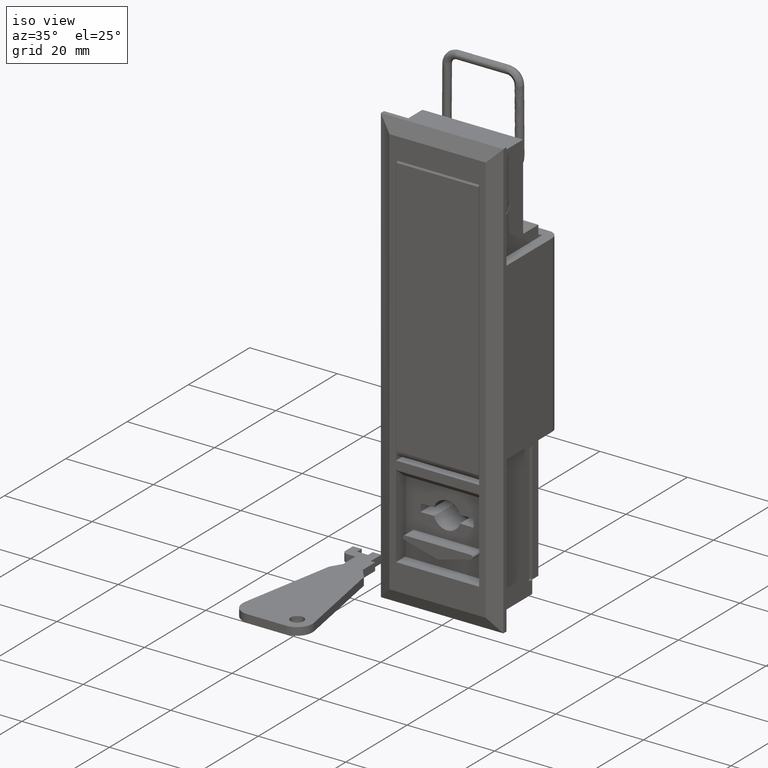
[diagram: clean part render]
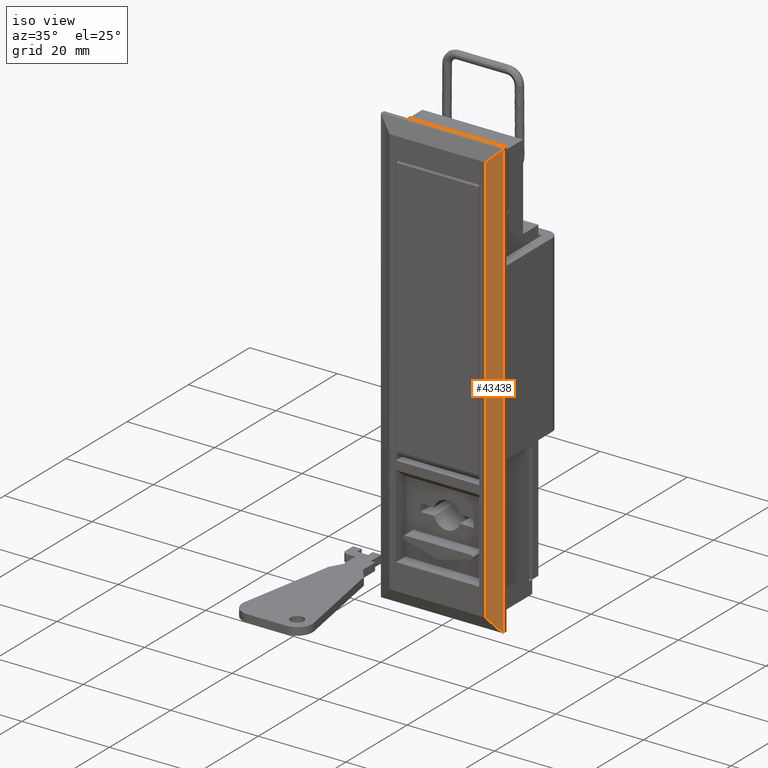
[diagram: same view with one face highlighted and labeled with its STEP entity id]
A machine part, iso view. The second image highlights one B-rep face of the part: STEP entity #43438.
In plain terms, the highlighted face is a freeform B-spline surface patch.
Its self-contained STEP definition (entity closure, byte-faithful):
#43403=CARTESIAN_POINT('',(0.074924997092705,-14.149849994185420,-4.994999806180597));
#43404=CARTESIAN_POINT('',(-1.574925037325756,-10.850149925348310,-4.994999806180597));
#43405=CARTESIAN_POINT('',(0.074924997092705,-14.149849994185420,104.995002488389600));
#43406=CARTESIAN_POINT('',(-1.574925037325756,-10.850149925348310,104.995002488389600));
#43407=B_SPLINE_SURFACE_WITH_KNOTS('',1,1,((#43403,#43405),(#43404,#43406)),.UNSPECIFIED.,.F.,.F.,.U.,(2,2),(2,2),(0.0,3.689176829640213),(0.0,109.990002294570200),.UNSPECIFIED.);
#43408=CARTESIAN_POINT('',(-1.499999999999912,-11.0,3.0));
#43409=VERTEX_POINT('',#43408);
#43410=CARTESIAN_POINT('',(-1.499999999999912,-11.0,97.0));
#43411=VERTEX_POINT('',#43410);
#43412=CARTESIAN_POINT('',(-1.499999999999912,-11.0,3.0));
#43413=CARTESIAN_POINT('',(-1.499999999999912,-11.0,97.0));
#43414=QUASI_UNIFORM_CURVE('',1,(#43412,#43413),.UNSPECIFIED.,.F.,.U.);
#43415=EDGE_CURVE('',#43409,#43411,#43414,.T.);
#43416=ORIENTED_EDGE('',*,*,#43415,.F.);
#43417=CARTESIAN_POINT('',(0.0,-14.0,0.0));
#43418=VERTEX_POINT('',#43417);
#43419=CARTESIAN_POINT('',(-1.499999999999912,-11.0,3.0));
#43420=CARTESIAN_POINT('',(0.0,-14.0,0.0));
#43421=QUASI_UNIFORM_CURVE('',1,(#43419,#43420),.UNSPECIFIED.,.F.,.U.);
#43422=EDGE_CURVE('',#43409,#43418,#43421,.T.);
#43423=ORIENTED_EDGE('',*,*,#43422,.T.);
#43424=CARTESIAN_POINT('',(-8.829471E-015,-14.0,100.0));
#43425=VERTEX_POINT('',#43424);
#43426=CARTESIAN_POINT('',(0.0,-14.0,0.0));
#43427=CARTESIAN_POINT('',(-8.829471E-015,-14.0,100.0));
#43428=QUASI_UNIFORM_CURVE('',1,(#43426,#43427),.UNSPECIFIED.,.F.,.U.);
#43429=EDGE_CURVE('',#43418,#43425,#43428,.T.);
#43430=ORIENTED_EDGE('',*,*,#43429,.T.);
#43431=CARTESIAN_POINT('',(-1.499999999999912,-11.0,97.0));
#43432=CARTESIAN_POINT('',(-8.829471E-015,-14.0,100.0));
#43433=QUASI_UNIFORM_CURVE('',1,(#43431,#43432),.UNSPECIFIED.,.F.,.U.);
#43434=EDGE_CURVE('',#43411,#43425,#43433,.T.);
#43435=ORIENTED_EDGE('',*,*,#43434,.F.);
#43436=EDGE_LOOP('',(#43416,#43423,#43430,#43435));
#43437=FACE_OUTER_BOUND('',#43436,.T.);
#43438=ADVANCED_FACE('',(#43437),#43407,.F.);